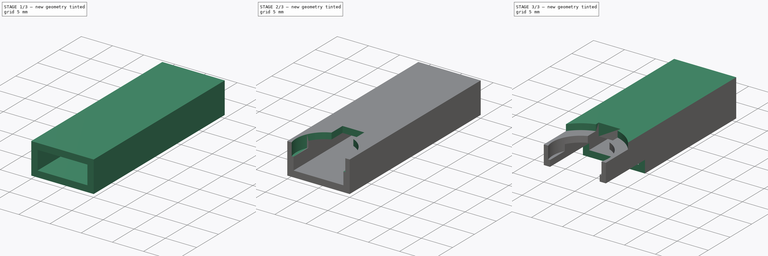
[diagram: build sequence overview — one tinted view per stage of 3, left to right]
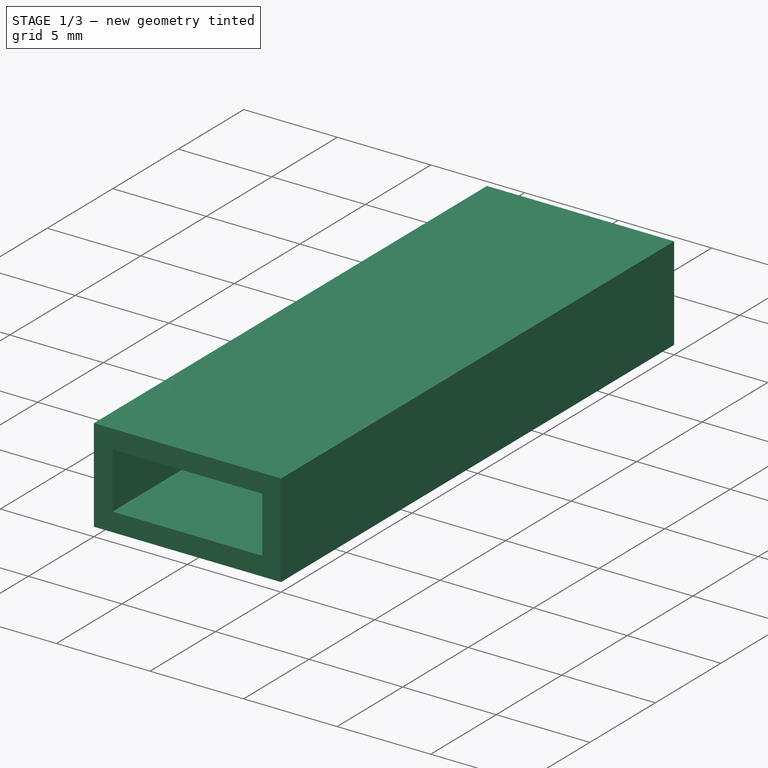
[diagram: stage 1 of 3 — iso view after this stage's code; geometry added in this stage tinted green]
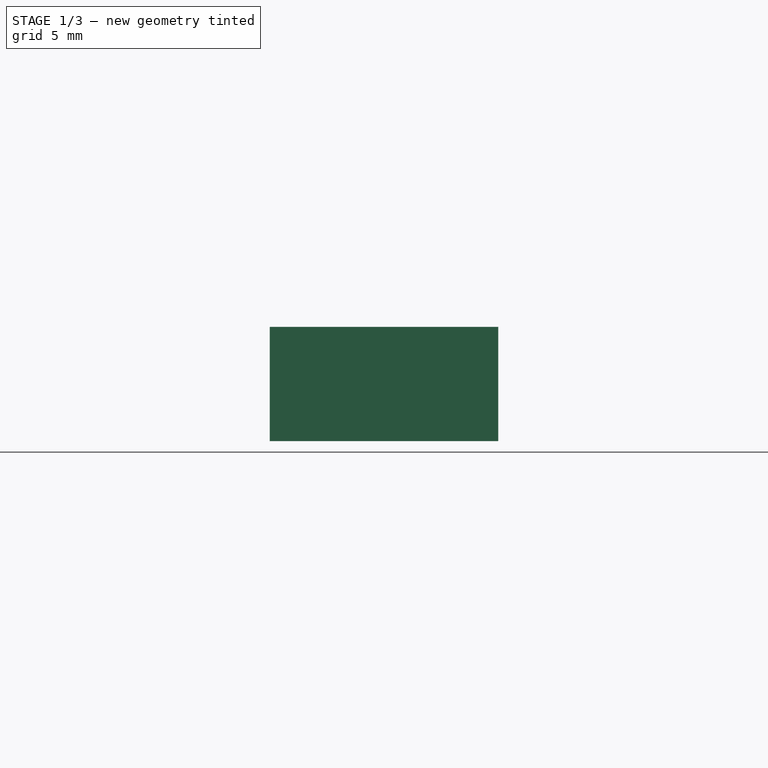
[diagram: stage 1 of 3 — front view after this stage's code; geometry added in this stage tinted green]
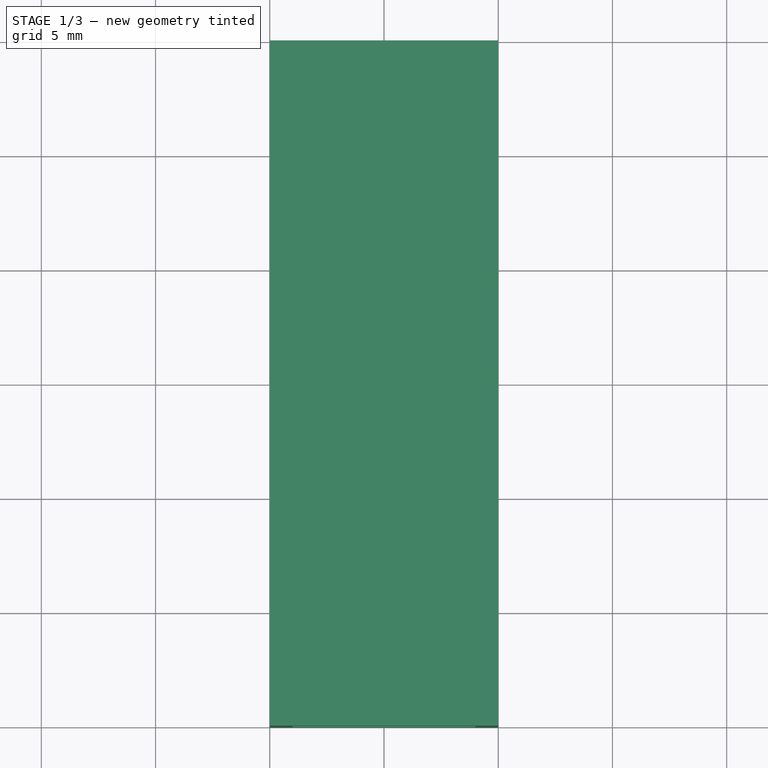
[diagram: stage 1 of 3 — top view after this stage's code; geometry added in this stage tinted green]
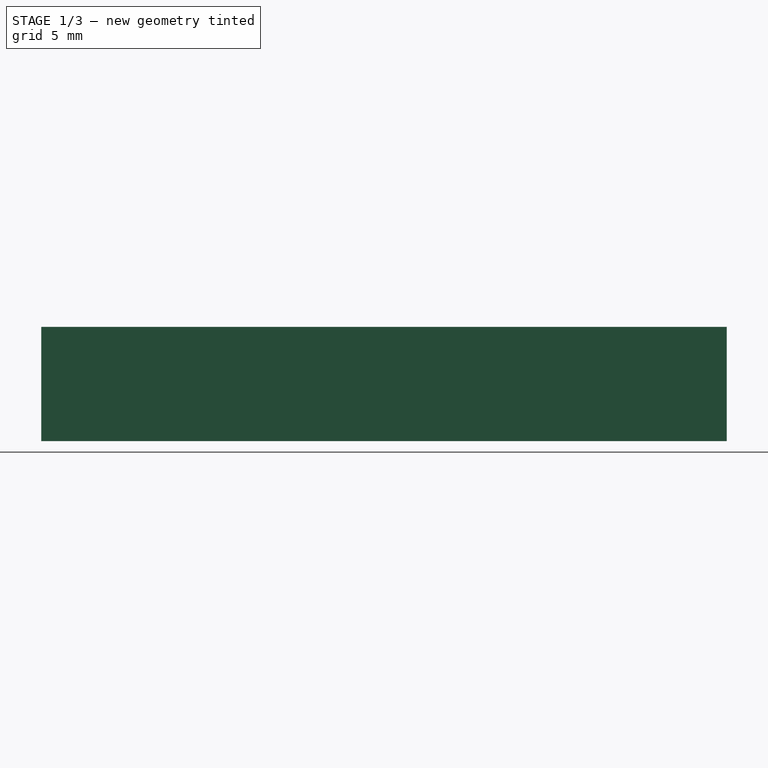
[diagram: stage 1 of 3 — right view after this stage's code; geometry added in this stage tinted green]
FCSTD DOCUMENT  (FreeCAD 1.0R39109 (Git))
Label: Ribbon Shield
License: All rights reserved
LicenseURL: https://en.wikipedia.org/wiki/All_rights_reserved
objects: Sketcher::SketchObject×4, PartDesign::Pad×2, PartDesign::Pocket×2, PartDesign::Thickness×1, PartDesign::Body×1
note: 24 computed .brp shape members not serialized (recipe doc carries the construction recipe); baked Part::Feature solids carry a one-line shape summary decoded from their .brp

FEATURE [Sketcher::SketchObject] Sketch
  ArcFitTolerance = 1e-06
  AttachmentSupport = -> [XY_Plane]
  FullyConstrained = true
  MakeInternals = false
  MapMode = 5
  sketch-geometry (4):
    g0: LineSegment StartX=0 StartY=0 StartZ=0 EndX=10 EndY=0 EndZ=0
    g1: LineSegment StartX=10 StartY=0 StartZ=0 EndX=10 EndY=30 EndZ=0
    g2: LineSegment StartX=10 StartY=30 StartZ=0 EndX=0 EndY=30 EndZ=0
    g3: LineSegment StartX=0 StartY=30 StartZ=0 EndX=0 EndY=0 EndZ=0
  constraints (11):
    c: Coincident(g0,g1)
    c: Coincident(g1,g2)
    c: Coincident(g2,g3)
    c: Coincident(g3,g0)
    c: Horizontal(g0)
    c: Horizontal(g2)
    c: Vertical(g1)
    c: Vertical(g3)
    c: Distance(g1,g3) = 10
    c: Distance(g0,g2) = 30
    c: Coincident(g0,g-1)
FEATURE [PartDesign::Pad] Pad
  Direction = (0,0,1)
  Length = 5
  Length2 = 10
  Profile = -> Sketch
  ReferenceAxis = -> Sketch [N_Axis]
  Refine = true
  Suppressed = false
  Type = 0
FEATURE [PartDesign::Thickness] Thickness
  Base = -> Pad [Face1]
  BaseFeature = -> Pad
  Intersection = false
  Join = 0
  Mode = 0
  Refine = true
  Reversed = true
  SupportTransform = false
  Suppressed = false
  Value = 1
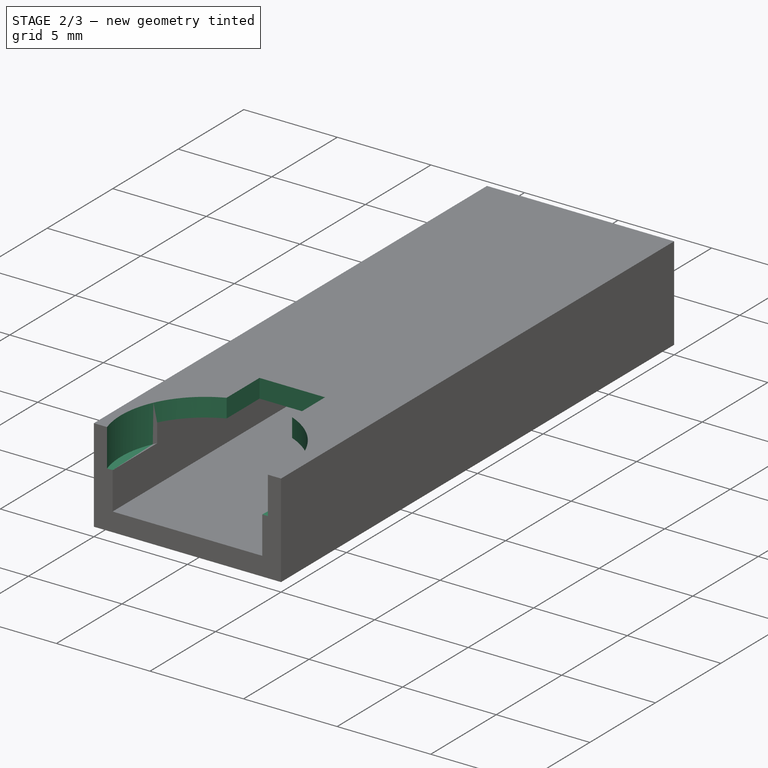
[diagram: stage 2 of 3 — iso view after this stage's code; geometry added in this stage tinted green]
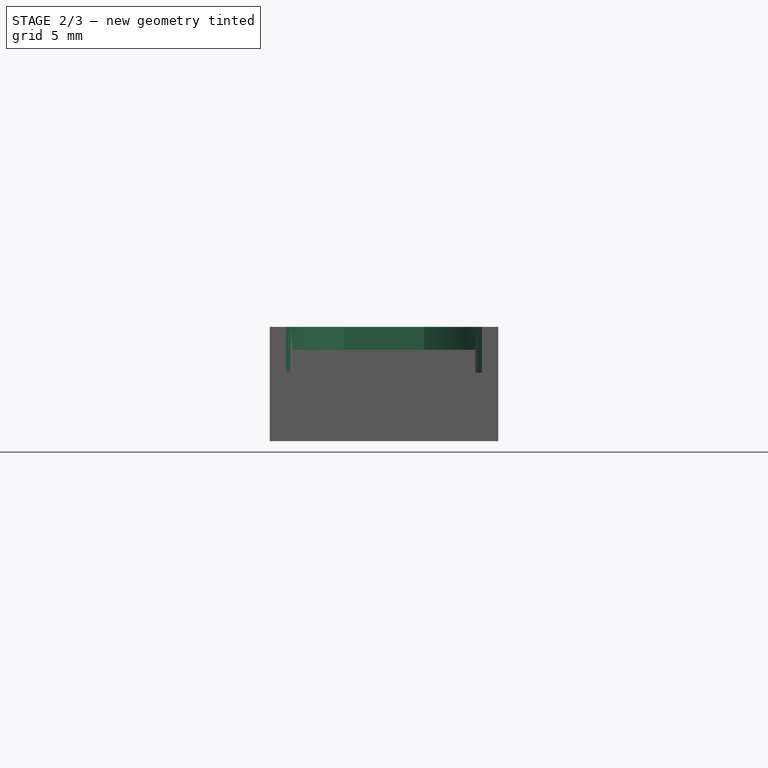
[diagram: stage 2 of 3 — front view after this stage's code; geometry added in this stage tinted green]
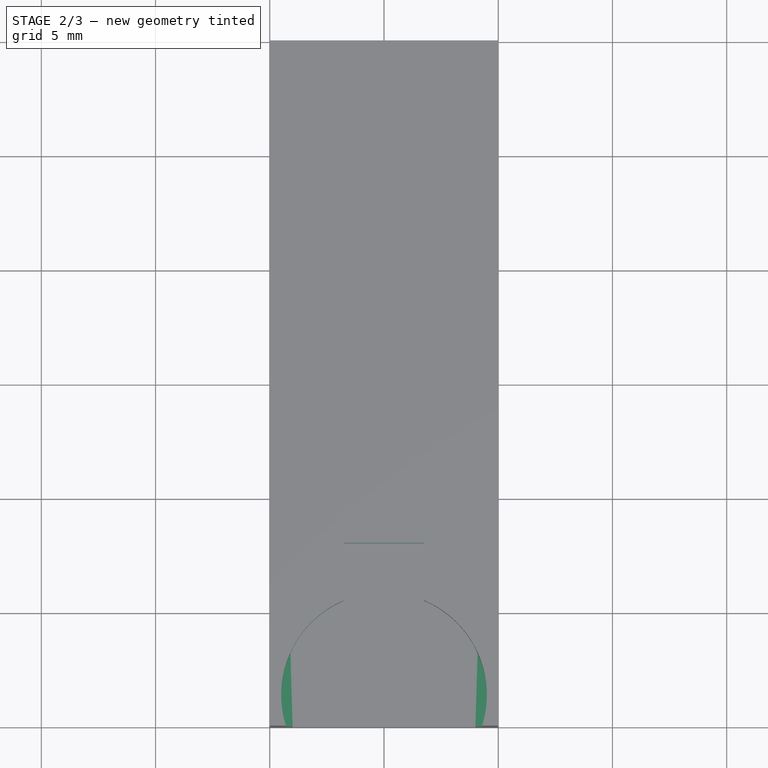
[diagram: stage 2 of 3 — top view after this stage's code; geometry added in this stage tinted green]
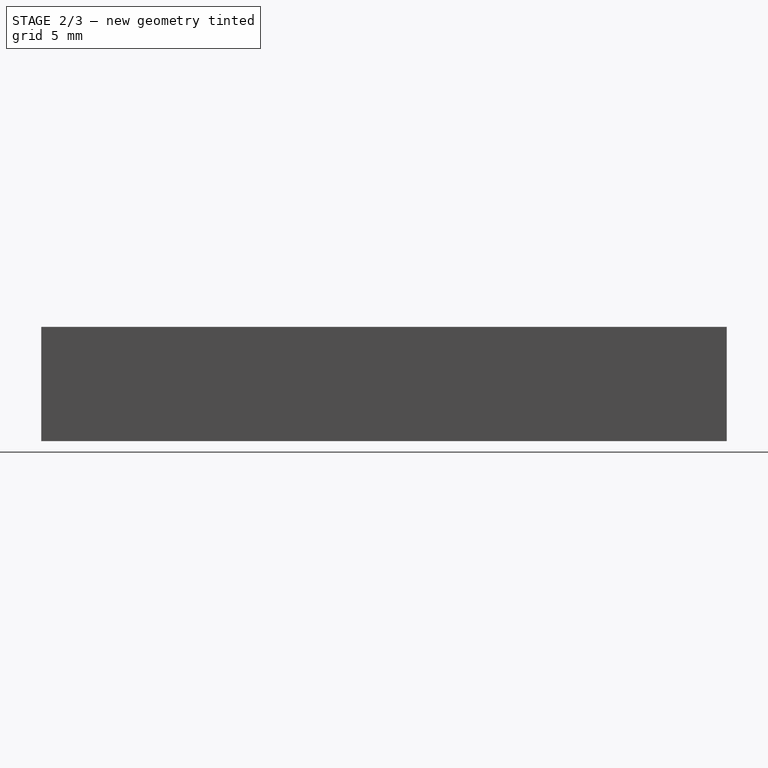
[diagram: stage 2 of 3 — right view after this stage's code; geometry added in this stage tinted green]
FEATURE [Sketcher::SketchObject] Sketch001
  ArcFitTolerance = 1e-06
  AttachmentSupport = -> [Thickness]
  ExternalGeometry = -> [Thickness]
  FullyConstrained = true
  MakeInternals = false
  MapMode = 5
  Placement = pos=(0,0,5) rot=(0,0,1;0rad)
  sketch-geometry (9):
    g0: LineSegment [constr] StartX=5 StartY=0 StartZ=0 EndX=5 EndY=1.33975 EndZ=0
    g1: LineSegment [constr] StartX=5 StartY=1.33975 StartZ=0 EndX=10 EndY=4e-16 EndZ=0
    g2: LineSegment StartX=3.25 StartY=5.48553 StartZ=0 EndX=3.25 EndY=8 EndZ=0
    g3: LineSegment StartX=3.25 StartY=8 StartZ=0 EndX=6.75 EndY=8 EndZ=0
    g4: LineSegment StartX=6.75 StartY=8 StartZ=0 EndX=6.75 EndY=5.48553 EndZ=0
    g5: ArcOfCircle CenterX=5 CenterY=1.33975 CenterZ=0 NormalX=0 NormalY=0 NormalZ=1 AngleXU=0 Radius=4.5 StartAngle=1.97022 EndAngle=3.4439
    g6: ArcOfCircle CenterX=5 CenterY=1.33975 CenterZ=0 NormalX=0 NormalY=0 NormalZ=1 AngleXU=0 Radius=4.5 StartAngle=5.98088 EndAngle=7.45456
    g7: LineSegment [constr] StartX=5 StartY=8 StartZ=0 EndX=5 EndY=0 EndZ=0
    g8: LineSegment StartX=0.704062 StartY=7e-16 StartZ=0 EndX=9.29594 EndY=-7e-16 EndZ=0
  constraints (25):
    c: Symmetric(g-3,g-3,g0)
    c: Vertical(g0)
    c: Coincident(g1,g-3)
    c: Angle(g1,g-3) = 0.261799
    c: PointOnObject(g5,g-3)
    c: PointOnObject(g6,g-3)
    c: Coincident(g0,g1)
    c: Vertical(g2)
    c: Coincident(g3,g2)
    c: Horizontal(g3)
    c: Coincident(g4,g3)
    c: Vertical(g4)
    c: Coincident(g5,g0)
    c: Coincident(g5,g2)
    c: Coincident(g6,g0)
    c: Coincident(g6,g4)
    c: Equal(g6,g5)
    c: Symmetric(g3,g3,g7)
    c: Coincident(g7,g0)
    c: Vertical(g7)
    c: DistanceX(g3,g3) = 3.5
    c: Radius(g5) = 4.5
    c: Coincident(g8,g5)
    c: Coincident(g8,g6)
    c: Distance(g8,g3) = 8
FEATURE [PartDesign::Pocket] Pocket
  BaseFeature = -> Thickness
  Direction = (0,0,-1)
  Length = 2
  Length2 = 5
  Profile = -> Sketch001
  ReferenceAxis = -> Sketch001 [N_Axis]
  Refine = true
  Suppressed = false
  Type = 0
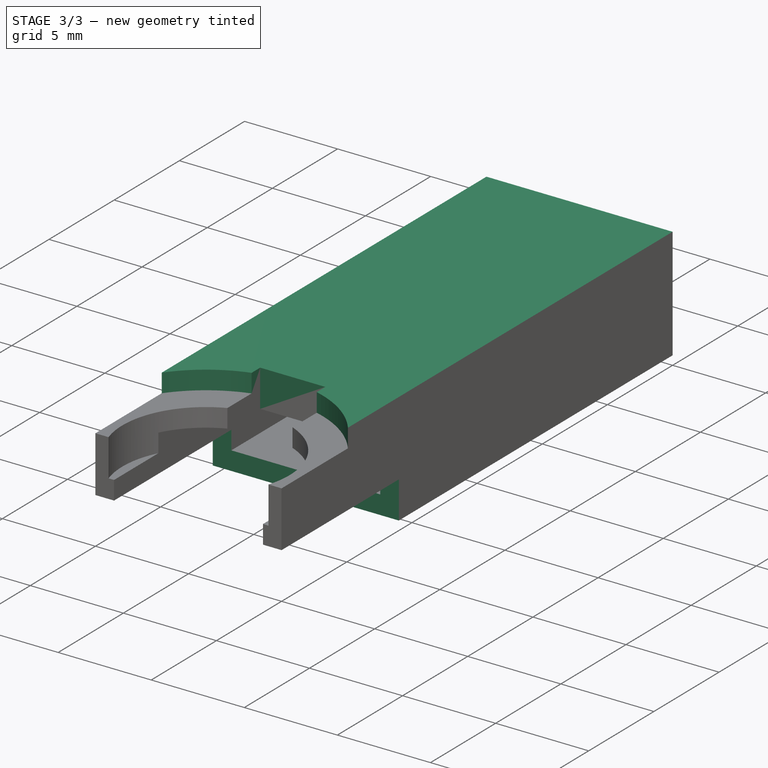
[diagram: stage 3 of 3 — iso view after this stage's code; geometry added in this stage tinted green]
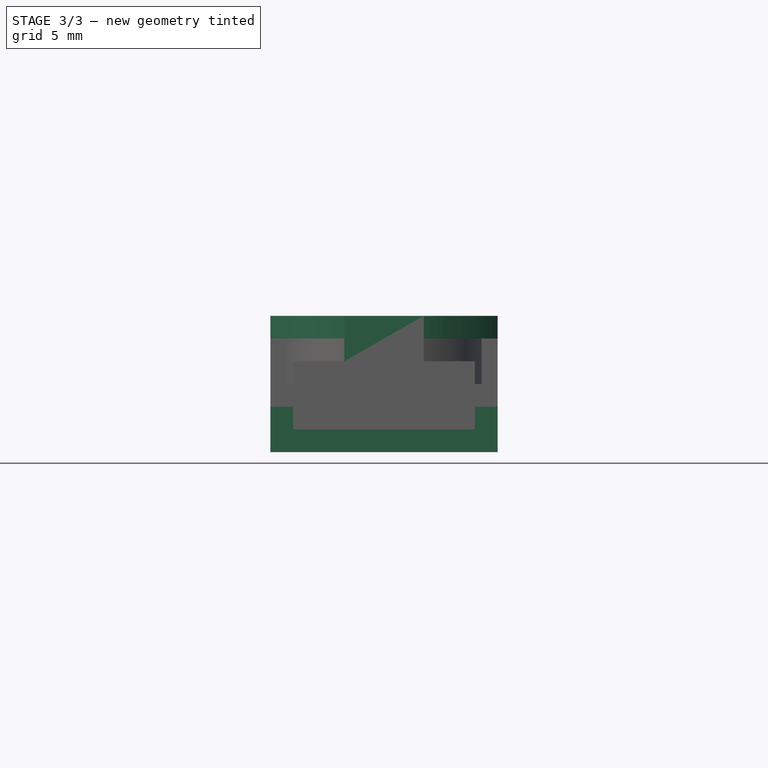
[diagram: stage 3 of 3 — front view after this stage's code; geometry added in this stage tinted green]
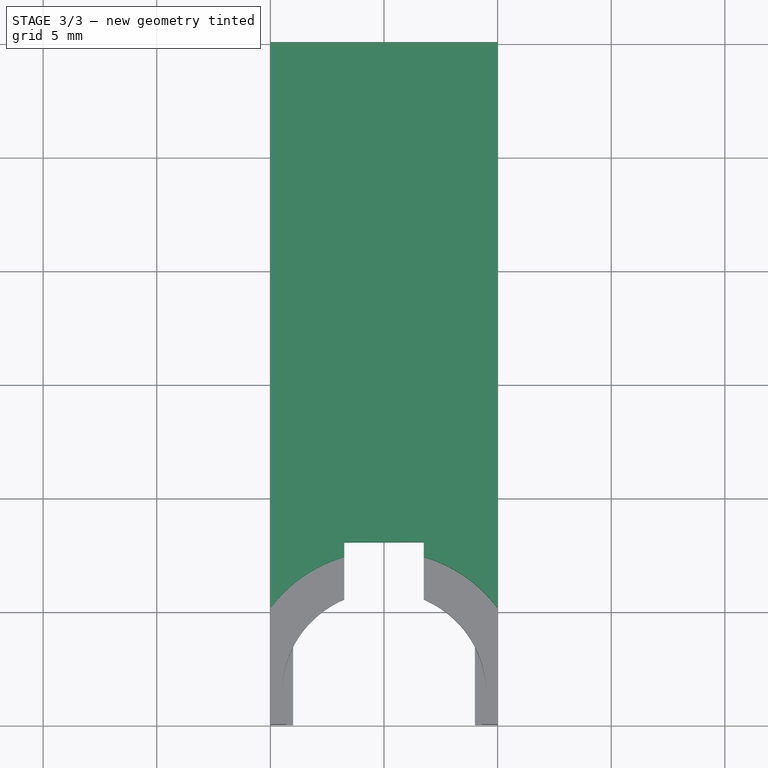
[diagram: stage 3 of 3 — top view after this stage's code; geometry added in this stage tinted green]
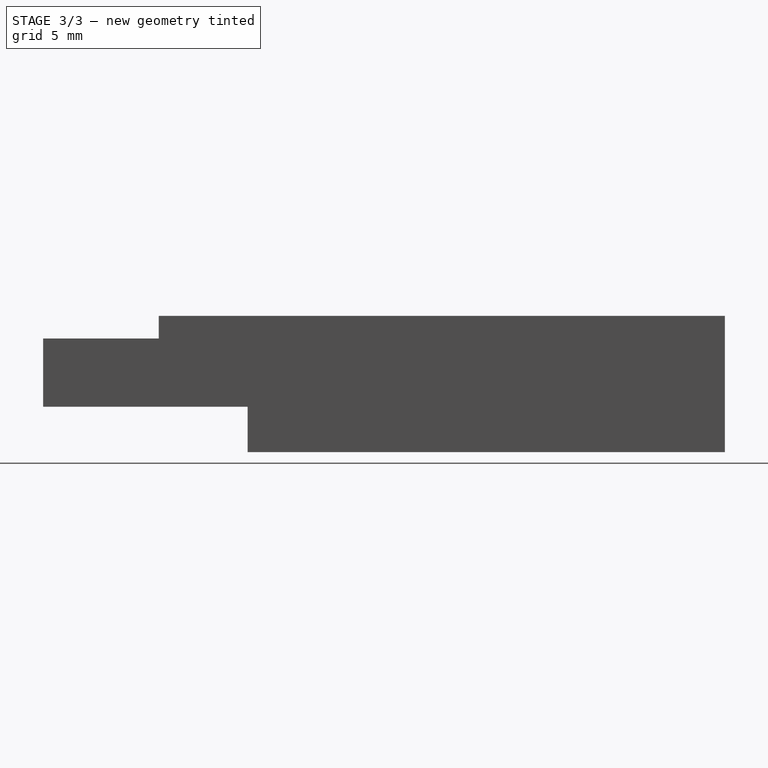
[diagram: stage 3 of 3 — right view after this stage's code; geometry added in this stage tinted green]
FEATURE [Sketcher::SketchObject] Sketch002
  ArcFitTolerance = 1e-06
  AttachmentSupport = -> [Pocket]
  ExternalGeometry = -> [Pocket]
  FullyConstrained = true
  MakeInternals = false
  MapMode = 5
  Placement = pos=(0,0,0) rot=(1,0,0;3.14159rad)
  sketch-geometry (4):
    g0: LineSegment StartX=0 StartY=0 StartZ=0 EndX=0 EndY=-9 EndZ=0
    g1: LineSegment StartX=0 StartY=-9 StartZ=0 EndX=10 EndY=-9 EndZ=0
    g2: LineSegment StartX=10 StartY=-9 StartZ=0 EndX=10 EndY=0 EndZ=0
    g3: LineSegment StartX=10 StartY=0 StartZ=0 EndX=0 EndY=0 EndZ=0
  constraints (11):
    c: Coincident(g0,g1)
    c: Coincident(g1,g2)
    c: Coincident(g2,g3)
    c: Coincident(g3,g0)
    c: Vertical(g0)
    c: Vertical(g2)
    c: Horizontal(g1)
    c: Horizontal(g3)
    c: Coincident(g0,g-1)
    c: PointOnObject(g1,g-3)
    c: Distance(g1,g3) = 9
FEATURE [PartDesign::Pocket] Pocket001
  BaseFeature = -> Pocket
  Direction = (0,0,1)
  Length = 2
  Length2 = 5
  Profile = -> Sketch002
  ReferenceAxis = -> Sketch002 [N_Axis]
  Refine = true
  Suppressed = false
  Type = 0
FEATURE [Sketcher::SketchObject] Sketch003
  ArcFitTolerance = 1e-06
  AttachmentSupport = -> [Pocket001]
  ExternalGeometry = -> [Sketch001,Pocket001]
  FullyConstrained = true
  MakeInternals = false
  MapMode = 5
  Placement = pos=(0,0,5) rot=(0,0,1;0rad)
  sketch-geometry (9):
    g0: Circle [constr] CenterX=5 CenterY=1.33975 CenterZ=0 NormalX=0 NormalY=0 NormalZ=1 AngleXU=0 Radius=6.25
    g1: LineSegment StartX=0 StartY=30 StartZ=0 EndX=10 EndY=30 EndZ=0
    g2: LineSegment StartX=10 StartY=30 StartZ=0 EndX=10 EndY=5.08975 EndZ=0
    g3: LineSegment StartX=0 StartY=30 StartZ=0 EndX=0 EndY=5.08975 EndZ=0
    g4: LineSegment StartX=3.25 StartY=7.33975 StartZ=0 EndX=3.25 EndY=8 EndZ=0
    g5: LineSegment StartX=3.25 StartY=8 StartZ=0 EndX=6.75 EndY=8 EndZ=0
    g6: LineSegment StartX=6.75 StartY=8 StartZ=0 EndX=6.75 EndY=7.33975 EndZ=0
    g7: ArcOfCircle CenterX=5 CenterY=1.33975 CenterZ=0 NormalX=0 NormalY=0 NormalZ=1 AngleXU=0 Radius=6.25 StartAngle=0.643501 EndAngle=1.287
    g8: ArcOfCircle CenterX=5 CenterY=1.33975 CenterZ=0 NormalX=0 NormalY=0 NormalZ=1 AngleXU=0 Radius=6.25 StartAngle=1.85459 EndAngle=2.49809
  constraints (23):
    c: Diameter(g0) = 12.5
    c: Coincident(g0,g-3)
    c: Coincident(g1,g-6)
    c: Coincident(g1,g-5)
    c: Coincident(g2,g1)
    c: PointOnObject(g2,g-5)
    c: PointOnObject(g2,g0)
    c: Coincident(g3,g1)
    c: PointOnObject(g3,g-6)
    c: PointOnObject(g3,g0)
    c: PointOnObject(g4,g0)
    c: Coincident(g4,g-7)
    c: Coincident(g5,g4)
    c: Coincident(g5,g-7)
    c: Coincident(g6,g5)
    c: PointOnObject(g6,g0)
    c: Vertical(g4)
    c: Coincident(g8,g7)
    c: Coincident(g8,g3)
    c: Coincident(g8,g4)
    c: Coincident(g7,g6)
    c: Vertical(g6)
    c: Coincident(g7,g2)
FEATURE [PartDesign::Pad] Pad001
  BaseFeature = -> Pocket001
  Direction = (0,0,1)
  Length = 1
  Length2 = 10
  Profile = -> Sketch003
  ReferenceAxis = -> Sketch003 [N_Axis]
  Refine = true
  Suppressed = false
  Type = 0
FEATURE [PartDesign::Body] Body
  AllowCompound = false
  Group = -> [Sketch,Pad,Thickness,Sketch001,Pocket,Sketch002,Pocket001,Sketch003,Pad001]
  Origin = -> Origin
  Tip = -> Pad001
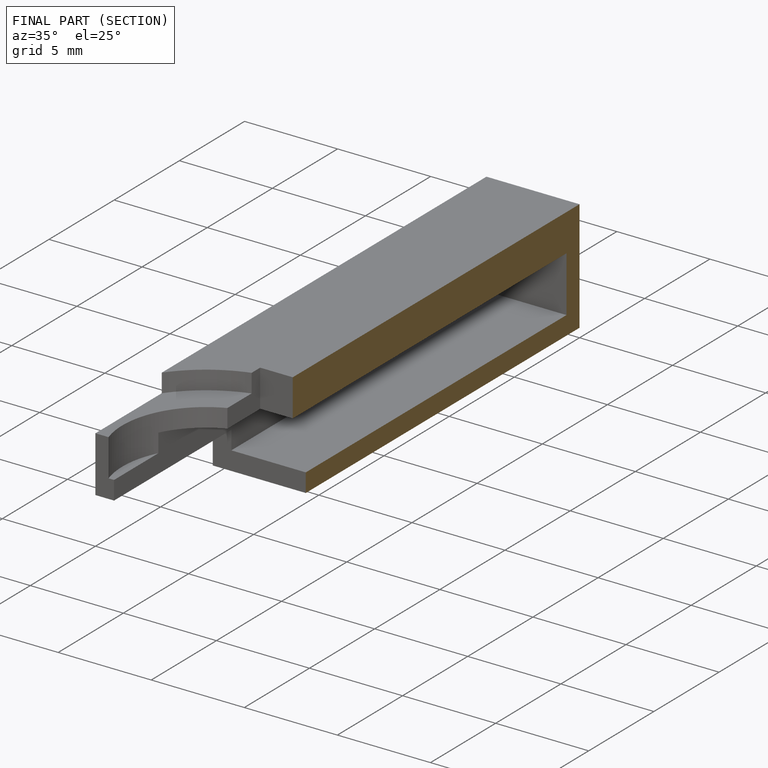
[diagram: finished part — half-section view (interior)]
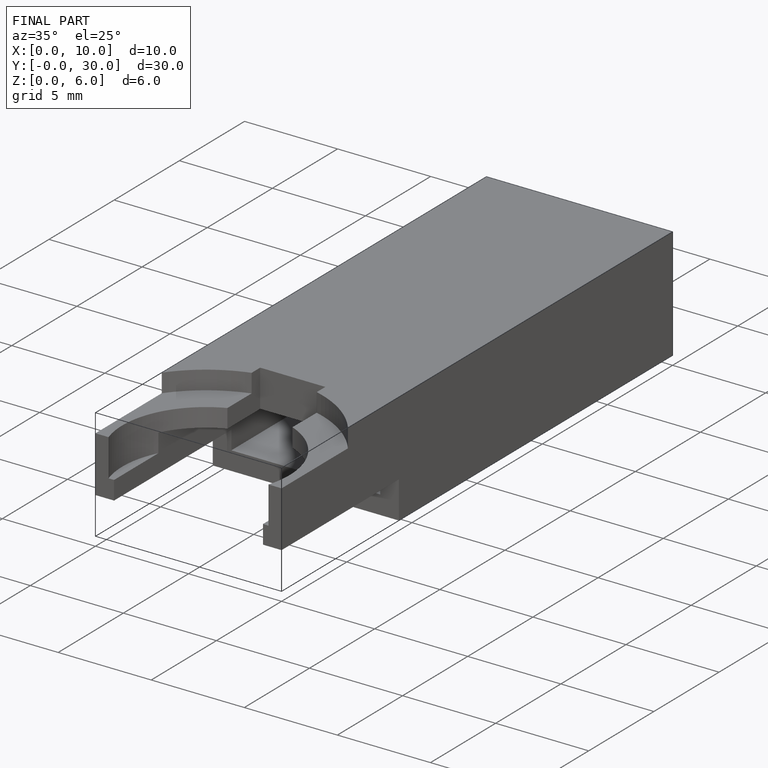
[diagram: finished part — iso view with bounding-box wireframe]
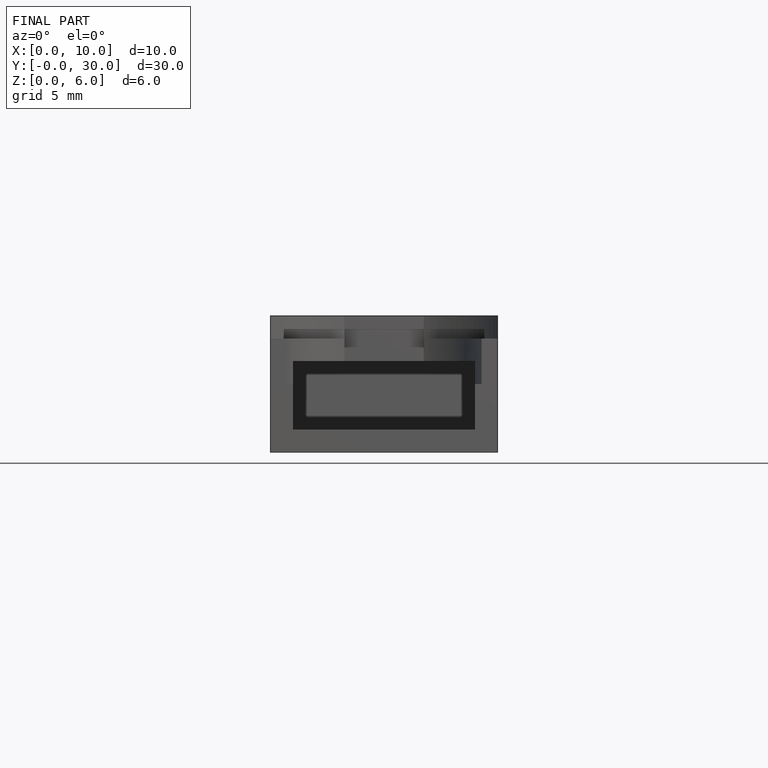
[diagram: finished part — front view with bounding-box wireframe]
